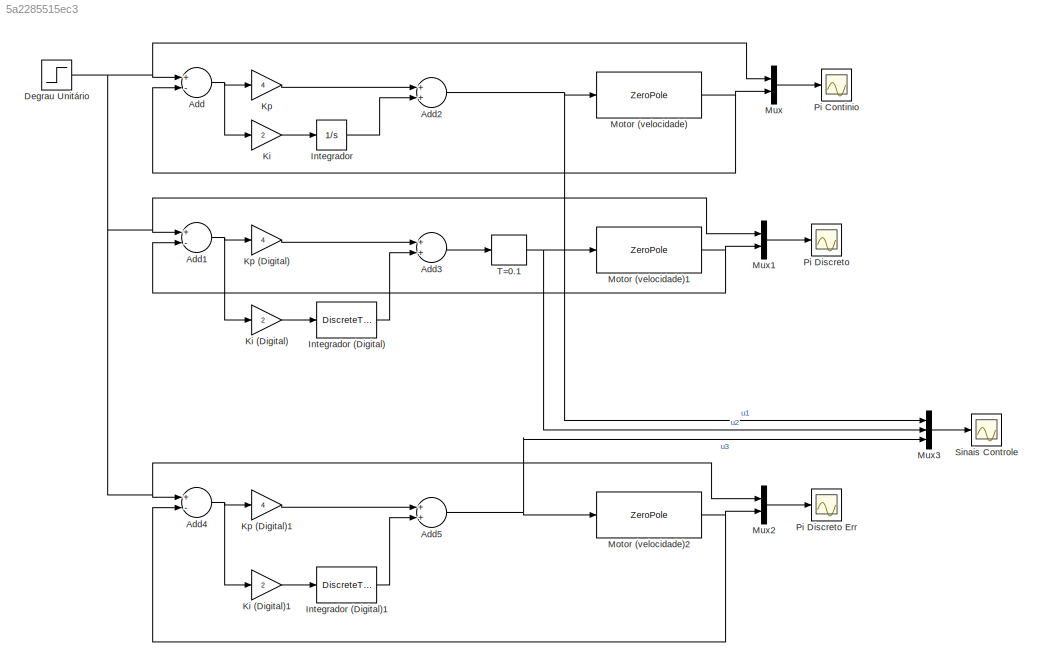
MODEL slx_5a2285515ec3
KIND model
CONFIG AbsTol = auto
CONFIG EnableMultiTasking = off
CONFIG FixedStep = auto
CONFIG MaxStep = auto
CONFIG MinStep = auto
CONFIG RelTol = 1e-3
CONFIG SampleTimeConstraint = Unconstrained
CONFIG Solver = VariableStepAuto
CONFIG SolverName = VariableStepAuto
CONFIG StartTime = 0.0
CONFIG StopTime = 7
BLOCK [Sum] Add
  InputSameDT = off
  Inputs = +-
  OutDataTypeStr = Inherit: Inherit via internal rule
  Ports = [2, 1]
  SaturateOnIntegerOverflow = off
BLOCK [Sum] Add1
  InputSameDT = off
  Inputs = +-
  OutDataTypeStr = Inherit: Inherit via internal rule
  Ports = [2, 1]
  SaturateOnIntegerOverflow = off
BLOCK [Sum] Add2
  InputSameDT = off
  OutDataTypeStr = Inherit: Inherit via internal rule
  Ports = [2, 1]
  SaturateOnIntegerOverflow = off
BLOCK [Sum] Add3
  InputSameDT = off
  OutDataTypeStr = Inherit: Inherit via internal rule
  Ports = [2, 1]
  SaturateOnIntegerOverflow = off
BLOCK [Sum] Add4
  InputSameDT = off
  Inputs = +-
  OutDataTypeStr = Inherit: Inherit via internal rule
  Ports = [2, 1]
  SaturateOnIntegerOverflow = off
BLOCK [Sum] Add5
  InputSameDT = off
  OutDataTypeStr = Inherit: Inherit via internal rule
  Ports = [2, 1]
  SaturateOnIntegerOverflow = off
BLOCK [Step] Degrau Unitário
  SampleTime = 0
BLOCK [Integrator] Integrador
  Ports = [1, 1]
BLOCK [DiscreteTransferFcn] Integrador (Digital)
  Denominator = [1 -1]
  InputPortMap = u0
  Numerator = [0.1]
  Ports = [1, 1]
  SampleTime = 0.1
BLOCK [DiscreteTransferFcn] Integrador (Digital)1
  Denominator = [1 -1]
  InputPortMap = u0
  Numerator = [0.1]
  Ports = [1, 1]
  SampleTime = 0.1
BLOCK [Gain] Ki
  Gain = 2
  OutDataTypeStr = Inherit: Inherit via internal rule
  ParamDataTypeStr = Inherit: Inherit via internal rule
  SaturateOnIntegerOverflow = off
BLOCK [Gain] Ki (Digital)
  Gain = 2
  OutDataTypeStr = Inherit: Inherit via internal rule
  ParamDataTypeStr = Inherit: Inherit via internal rule
  SaturateOnIntegerOverflow = off
BLOCK [Gain] Ki (Digital)1
  Gain = 2
  OutDataTypeStr = Inherit: Inherit via internal rule
  ParamDataTypeStr = Inherit: Inherit via internal rule
  SaturateOnIntegerOverflow = off
BLOCK [Gain] Kp
  Gain = 4
  OutDataTypeStr = Inherit: Inherit via internal rule
  ParamDataTypeStr = Inherit: Inherit via internal rule
  SaturateOnIntegerOverflow = off
BLOCK [Gain] Kp (Digital)
  Gain = 4
  OutDataTypeStr = Inherit: Inherit via internal rule
  ParamDataTypeStr = Inherit: Inherit via internal rule
  SaturateOnIntegerOverflow = off
BLOCK [Gain] Kp (Digital)1
  Gain = 4
  OutDataTypeStr = Inherit: Inherit via internal rule
  ParamDataTypeStr = Inherit: Inherit via internal rule
  SaturateOnIntegerOverflow = off
BLOCK [ZeroPole] Motor (velocidade)
  Poles = [-2 -1/2]
  Zeros = []
BLOCK [ZeroPole] Motor (velocidade)1
  Poles = [-2 -1/2]
  Zeros = []
BLOCK [ZeroPole] Motor (velocidade)2
  Poles = [-2 -1/2]
  Zeros = []
BLOCK [Mux] Mux
  DisplayOption = bar
  Inputs = 2
  Ports = [2, 1]
BLOCK [Mux] Mux1
  DisplayOption = bar
  Inputs = 2
  Ports = [2, 1]
BLOCK [Mux] Mux2
  DisplayOption = bar
  Inputs = 2
  Ports = [2, 1]
BLOCK [Mux] Mux3
  DisplayOption = bar
  Inputs = 3
  Ports = [3, 1]
BLOCK [Scope] Pi Continio
  Floating = off
  NumInputPorts = 1
  Ports = [1]
  ScopeSpecificationString = Simulink.scopes.TimeScopeBlockCfg('CurrentConfiguration', extmgr.ConfigurationSet(extmgr.Configuration('Core','General UI',true,'FigureColor',[1 1 1]),extmgr.Configuration('Core','Source UI',true),extmgr.Configuration('Sources','WiredSimulink',true),extmgr.Configuration('Visuals','Time Domain',true,'SerializedDisplays',{struct('MinYLimReal','-0.14537','MaxYLimReal','1.30834','YLabelReal','','MinYL...<+1714ch>
BLOCK [Scope] Pi Discreto
  Floating = off
  NumInputPorts = 1
  Ports = [1]
  ScopeSpecificationString = Simulink.scopes.TimeScopeBlockCfg('CurrentConfiguration', extmgr.ConfigurationSet(extmgr.Configuration('Core','General UI',true,'FigureColor',[1 1 1]),extmgr.Configuration('Core','Source UI',true),extmgr.Configuration('Sources','WiredSimulink',true,'DataLoggingVariableName','ScopeData1'),extmgr.Configuration('Visuals','Time Domain',true,'SerializedDisplays',{struct('MinYLimReal','-0.15082','MaxYLi...<+1753ch>
BLOCK [Scope] Pi Discreto Err
  Floating = off
  NumInputPorts = 1
  Ports = [1]
  ScopeSpecificationString = Simulink.scopes.TimeScopeBlockCfg('CurrentConfiguration', extmgr.ConfigurationSet(extmgr.Configuration('Core','General UI',true,'FigureColor',[1 1 1]),extmgr.Configuration('Core','Source UI',true),extmgr.Configuration('Sources','WiredSimulink',true,'DataLoggingVariableName','ScopeData2'),extmgr.Configuration('Visuals','Time Domain',true,'SerializedDisplays',{struct('MinYLimReal','-0.14769','MaxYLi...<+1753ch>
BLOCK [Scope] Sinais Controle
  Floating = off
  NumInputPorts = 1
  Ports = [1]
  ScopeSpecificationString = Simulink.scopes.TimeScopeBlockCfg('CurrentConfiguration', extmgr.ConfigurationSet(extmgr.Configuration('Core','General UI',true,'FigureColor',[1 1 1]),extmgr.Configuration('Core','Source UI',true),extmgr.Configuration('Sources','WiredSimulink',true,'DataLoggingVariableName','ScopeData3'),extmgr.Configuration('Visuals','Time Domain',true,'SerializedDisplays',{struct('MinYLimReal','-0.51582','MaxYLi...<+2256ch>
BLOCK [ZeroOrderHold] T=0.1
  SampleTime = 0.1
NET Add1:1 -> Ki (Digital):1, Kp (Digital):1
NET Add2:1 -> Motor (velocidade):1, Mux3:1
LINE Add3:1 -> T=0.1:1
NET Add4:1 -> Ki (Digital)1:1, Kp (Digital)1:1
NET Add5:1 -> Motor (velocidade)2:1, Mux3:3
NET Add:1 -> Ki:1, Kp:1
NET Degrau Unitário:1 -> Add1:1, Add4:1, Add:1, Mux1:1, Mux2:1, Mux:1
LINE Integrador (Digital)1:1 -> Add5:2
LINE Integrador (Digital):1 -> Add3:2
LINE Integrador:1 -> Add2:2
LINE Ki (Digital)1:1 -> Integrador (Digital)1:1
LINE Ki (Digital):1 -> Integrador (Digital):1
LINE Ki:1 -> Integrador:1
LINE Kp (Digital)1:1 -> Add5:1
LINE Kp (Digital):1 -> Add3:1
LINE Kp:1 -> Add2:1
NET Motor (velocidade)1:1 -> Add1:2, Mux1:2
NET Motor (velocidade)2:1 -> Add4:2, Mux2:2
NET Motor (velocidade):1 -> Add:2, Mux:2
LINE Mux1:1 -> Pi Discreto:1
LINE Mux2:1 -> Pi Discreto Err:1
LINE Mux3:1 -> Sinais Controle:1
LINE Mux:1 -> Pi Continio:1
NET T=0.1:1 -> Motor (velocidade)1:1, Mux3:2
note: NET lines group one-source signal fan-out (src -> all destinations, sorted); 1:1 wires keep LINE
